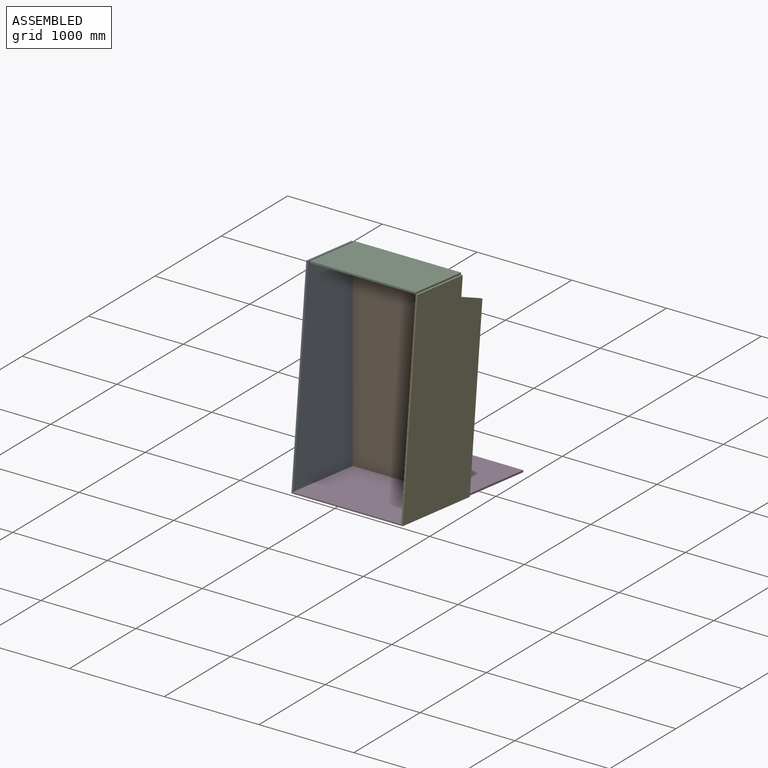
[diagram: assembled view]
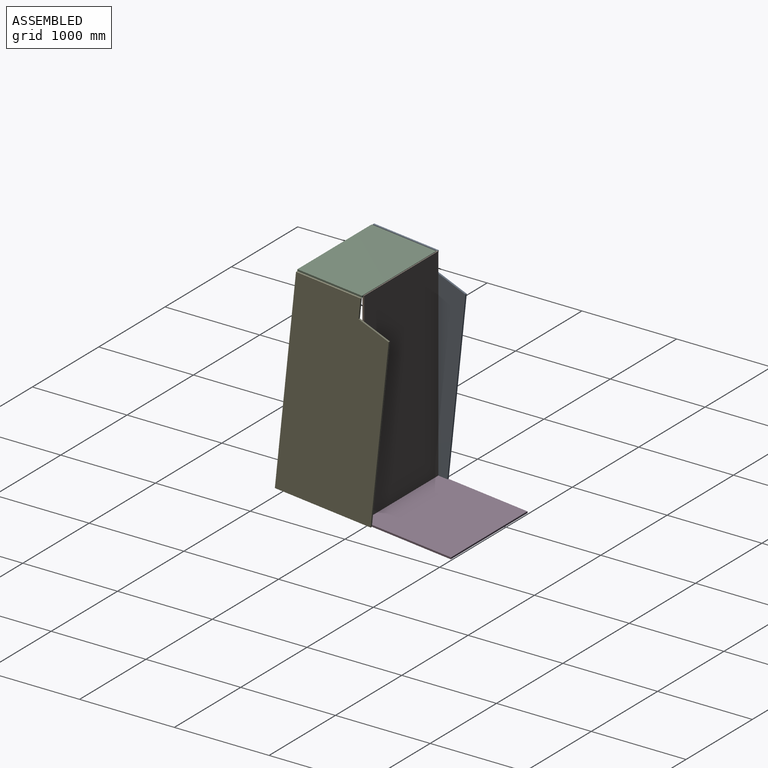
[diagram: assembled view, second angle]
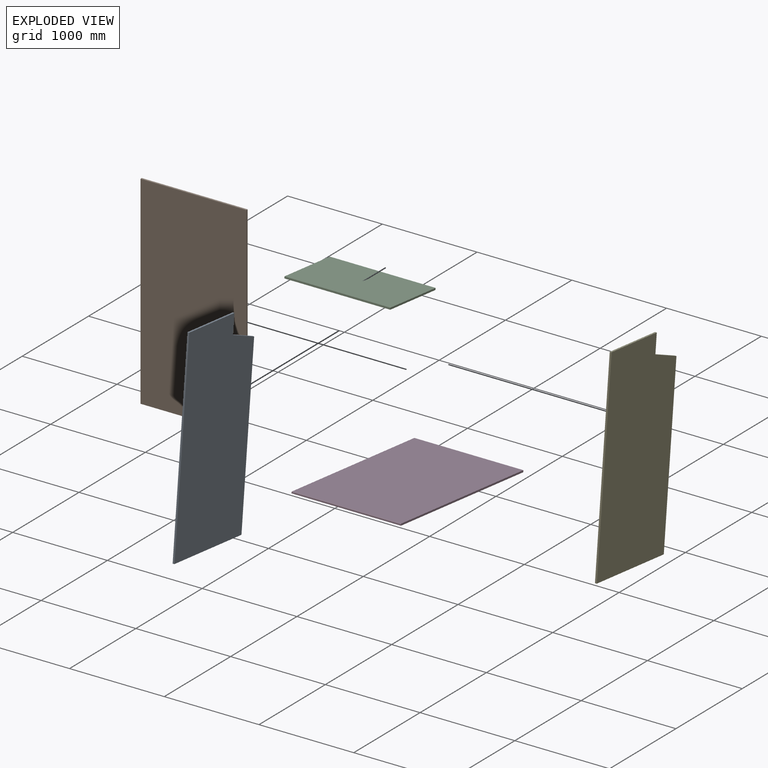
[diagram: exploded view]
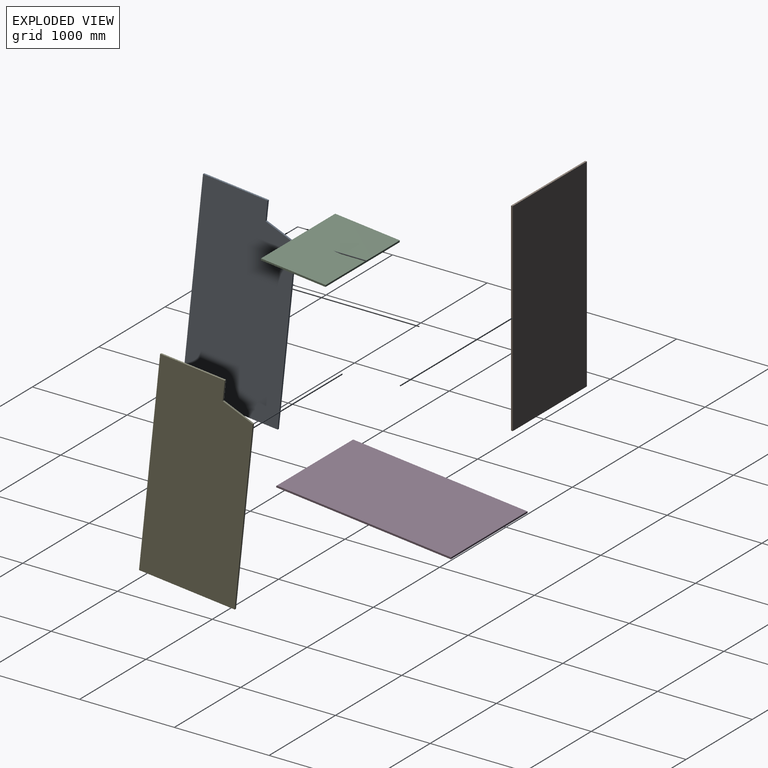
[diagram: exploded view, second angle]
ASSEMBLY  parts=5 mates=4
PART A: 8 faces, bbox 19.1x2133.6x1016 mm
  f0: plane 2133.6x19.05mm, normal (0,0,-1), area 40645.1mm2, adj f1,f5,f6,f7
  f1: plane 1016x19.05mm, normal (0,1,0), area 19354.8mm2, adj f0,f2,f6,f7
  f2: plane 1828.8x19.05mm, normal (0,0,1), area 34838.6mm2, adj f1,f3,f6,f7
  f3: plane 330.2x101.6mm, normal (0,-0.96,0.29), area 6581.3mm2, adj f2,f4,f6,f7
  f4: plane 203.2x19.05mm, normal (0,0,1), area 3871mm2, adj f3,f5,f6,f7
  f5: plane 685.8x19.05mm, normal (0,-1,0), area 13064.5mm2, adj f0,f4,f6,f7
  f6: plane 2133.6x1016mm, normal (1,0,0), area 2083866.8mm2, adj f0,f1,f2,f3,f4,f5
  f7: plane 2133.6x1016mm, normal (-1,0,0), area 2083866.8mm2, adj f0,f1,f2,f3,f4,f5
PART B: 6 faces, bbox 2146.3x19.1x1117.6 mm
  f0: plane 1117.6x19.05mm, normal (-1,0,0), area 21290.3mm2, adj f1,f3,f4,f5
  f1: plane 2146.3x19.05mm, normal (0,0,-1), area 40887mm2, adj f0,f2,f4,f5
  f2: plane 1117.6x19.05mm, normal (1,0,0), area 21290.3mm2, adj f1,f3,f4,f5
  f3: plane 2146.3x19.05mm, normal (0,0,1), area 40887mm2, adj f0,f2,f4,f5
  f4: plane 2146.3x1117.6mm, normal (0,-1,0), area 2398704.9mm2, adj f0,f1,f2,f3
  f5: plane 2146.3x1117.6mm, normal (0,1,0), area 2398704.9mm2, adj f0,f1,f2,f3
PART C: 6 faces, bbox 1117.6x19.1x685.8 mm
  f0: plane 1117.6x19.05mm, normal (0,0,1), area 21290.3mm2, adj f1,f3,f4,f5
  f1: plane 685.8x19.05mm, normal (-1,0,0), area 13064.5mm2, adj f0,f2,f4,f5
  f2: plane 1117.6x19.05mm, normal (0,0,-1), area 21290.3mm2, adj f1,f3,f4,f5
  f3: plane 685.8x19.05mm, normal (1,0,0), area 13064.5mm2, adj f0,f2,f4,f5
  f4: plane 1117.6x685.8mm, normal (0,-1,0), area 766450.1mm2, adj f0,f1,f2,f3
  f5: plane 1117.6x685.8mm, normal (0,1,0), area 766450.1mm2, adj f0,f1,f2,f3
PART D: 8 faces, bbox 1155.7x19.1x1854.2 mm
  f0: plane 1155.7x19.05mm, normal (0,0,1), area 22003.2mm2, adj f1,f3,f4,f5,f6
  f1: plane 1854.2x13.97mm, normal (-1,0,0), area 25903.2mm2, adj f0,f2,f5,f6
  f2: plane 1155.7x13.97mm, normal (0,0,-1), area 16145.1mm2, adj f1,f3,f5,f7
  f3: plane 1854.2x19.05mm, normal (1,0,0), area 35309.6mm2, adj f0,f2,f4,f5,f7
  f4: plane 1849.12x1150.62mm, normal (0,-1,0), area 2127634.5mm2, adj f0,f3,f6,f7
  f5: plane 1854.2x1155.7mm, normal (0,1,0), area 2142898.9mm2, adj f0,f1,f2,f3
  f6: plane 1854.2x5.08mm, normal (-0.71,-0.71,0), area 13302.7mm2, adj f0,f1,f4,f7
  f7: plane 1155.7x5.08mm, normal (0,-0.71,-0.71), area 8284.5mm2, adj f2,f3,f4,f6
PART E: same geometry as A
PLACE A rot(axis=(-1,0,0),96deg) t=(-1017.6,1372.03,-522.66)mm
PLACE B rot(axis=(0,-1,0),90deg) t=(119.05,2286.62,-516.83)mm
PLACE C rot(axis=(0,-0.74,-0.67),180deg) t=(-419.92,2044.77,1557.1)mm
PLACE D rot(axis=(-1,0,0),96deg) t=(-660.68,1678.73,-568.94)mm
PLACE E rot(axis=(-1,0,0),96deg) t=(138.1,1370.57,-536.55)mm
MATE fastened D.f2 <-> E.f0  axis (0,-0.99,0.1) through (138.1,1370.57,-536.55)mm
MATE revolute A.f6 <-> B.f3  axis (1,0,0) through (-998.55,2277.09,1527.57)mm
MATE fastened D.f2 <-> A.f0  axis (0,0.99,-0.1) through (-1017.6,1372.03,-522.66)mm
MATE fastened C.f1 <-> E.f7  axis (1,0,0) through (138.1,1593.59,1585.36)mm
